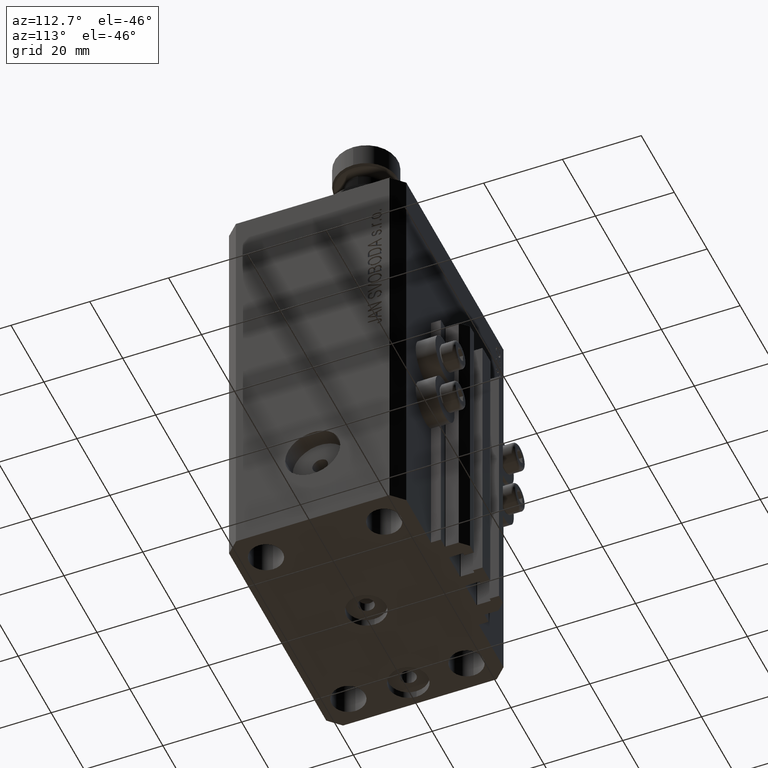
[diagram: clean part render]
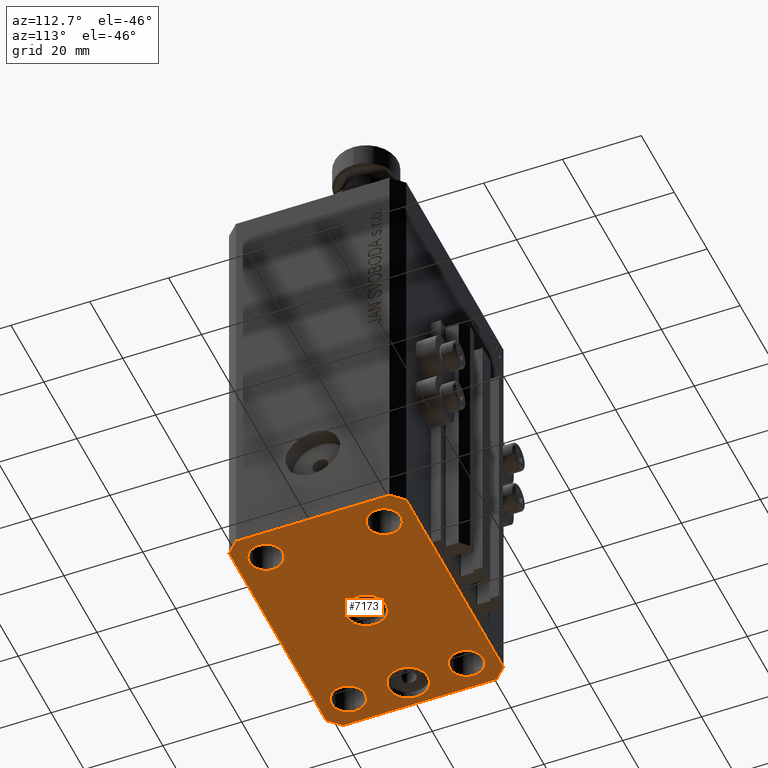
[diagram: same view with one face highlighted and labeled with its STEP entity id]
A machine part, auxiliary view. The second image highlights one B-rep face of the part: STEP entity #7173.
In plain terms, the highlighted planar face has unit normal (0, 0, 1).
Its self-contained STEP definition (entity closure, byte-faithful):
#162 = PLANE ( 'NONE',  #18892 ) ;
#320 = EDGE_CURVE ( 'NONE', #21083, #45650, #15331, .T. ) ;
#1200 = DIRECTION ( 'NONE',  ( -1.000000000000000000, 0.000000000000000000, 0.000000000000000000 ) ) ;
#1346 = EDGE_LOOP ( 'NONE', ( #43074, #43157 ) ) ;
#1465 = CARTESIAN_POINT ( 'NONE',  ( 24.99999999999999289, -15.00000000000000355, -107.0000000000000000 ) ) ;
#1500 = VERTEX_POINT ( 'NONE', #44455 ) ;
#1962 = CARTESIAN_POINT ( 'NONE',  ( 25.00000000000000000, 14.99999999999999289, -107.0000000000000000 ) ) ;
#2542 = AXIS2_PLACEMENT_3D ( 'NONE', #33009, #48120, #22137 ) ;
#2842 = EDGE_CURVE ( 'NONE', #11910, #28957, #15974, .T. ) ;
#3411 = CARTESIAN_POINT ( 'NONE',  ( 29.49999999999650413, -22.49999999999949196, -107.0000000000000000 ) ) ;
#3674 = CARTESIAN_POINT ( 'NONE',  ( 0.000000000000000000, 0.000000000000000000, -107.0000000000000000 ) ) ;
#4301 = EDGE_CURVE ( 'NONE', #31189, #7144, #40583, .T. ) ;
#4832 = CIRCLE ( 'NONE', #32517, 4.249999999957291053 ) ;
#5015 = CARTESIAN_POINT ( 'NONE',  ( 5.000000000000000000, 6.123233995736765296E-16, -107.0000000000000000 ) ) ;
#5166 = DIRECTION ( 'NONE',  ( -0.7071067811865474617, -0.7071067811865474617, 0.000000000000000000 ) ) ;
#5409 = EDGE_CURVE ( 'NONE', #1500, #27540, #19591, .T. ) ;
#5481 = ORIENTED_EDGE ( 'NONE', *, *, #9612, .F. ) ;
#5855 = CARTESIAN_POINT ( 'NONE',  ( -20.74999999997862687, 14.99999999999999645, -107.0000000000000000 ) ) ;
#5991 = CARTESIAN_POINT ( 'NONE',  ( -29.25000000002137668, 14.99999999999999645, -107.0000000000000000 ) ) ;
#6307 = ORIENTED_EDGE ( 'NONE', *, *, #45948, .F. ) ;
#6433 = ORIENTED_EDGE ( 'NONE', *, *, #47009, .F. ) ;
#6674 = DIRECTION ( 'NONE',  ( 1.000000000000000000, 1.176083712526788232E-16, 0.000000000000000000 ) ) ;
#6721 = VERTEX_POINT ( 'NONE', #5015 ) ;
#6753 = CARTESIAN_POINT ( 'NONE',  ( -29.25000000004036593, -15.00000000000000355, -107.0000000000000000 ) ) ;
#6828 = DIRECTION ( 'NONE',  ( -0.000000000000000000, -0.000000000000000000, -1.000000000000000000 ) ) ;
#6909 = CARTESIAN_POINT ( 'NONE',  ( -20.50000000000333955, 6.123233995732674066E-16, -107.0000000000000000 ) ) ;
#7144 = VERTEX_POINT ( 'NONE', #25437 ) ;
#7173 = ADVANCED_FACE ( 'NONE', ( #43504, #24694, #39797, #11792, #30130, #30602, #11314 ), #162, .F. ) ;
#7482 = EDGE_LOOP ( 'NONE', ( #13614, #5481 ) ) ;
#8049 = VERTEX_POINT ( 'NONE', #32181 ) ;
#8528 = DIRECTION ( 'NONE',  ( -1.000000000000000000, -3.528251137580330676E-16, 0.000000000000000000 ) ) ;
#8534 = ORIENTED_EDGE ( 'NONE', *, *, #8632, .F. ) ;
#8630 = LINE ( 'NONE', #45293, #27695 ) ;
#8632 = EDGE_CURVE ( 'NONE', #46364, #43980, #16106, .T. ) ;
#8850 = ORIENTED_EDGE ( 'NONE', *, *, #43205, .F. ) ;
#9038 = EDGE_LOOP ( 'NONE', ( #23579, #8850 ) ) ;
#9245 = ORIENTED_EDGE ( 'NONE', *, *, #5409, .F. ) ;
#9612 = EDGE_CURVE ( 'NONE', #45650, #21083, #33038, .T. ) ;
#10239 = CARTESIAN_POINT ( 'NONE',  ( -32.49999999999650413, 19.49999999999949907, -107.0000000000000000 ) ) ;
#11289 = VERTEX_POINT ( 'NONE', #6753 ) ;
#11314 = FACE_OUTER_BOUND ( 'NONE', #35881, .T. ) ;
#11787 = AXIS2_PLACEMENT_3D ( 'NONE', #13205, #16930, #46622 ) ;
#11792 = FACE_BOUND ( 'NONE', #36654, .T. ) ;
#11910 = VERTEX_POINT ( 'NONE', #13023 ) ;
#12353 = CARTESIAN_POINT ( 'NONE',  ( 0.000000000000000000, 0.000000000000000000, -107.0000000000000000 ) ) ;
#12611 = CARTESIAN_POINT ( 'NONE',  ( -29.49999999999650413, 22.49999999999949907, -107.0000000000000000 ) ) ;
#12871 = DIRECTION ( 'NONE',  ( 1.334402673828349134E-14, 1.000000000000000000, 0.000000000000000000 ) ) ;
#13023 = CARTESIAN_POINT ( 'NONE',  ( 29.49999999999707967, 22.49999999999952038, -107.0000000000000000 ) ) ;
#13205 = CARTESIAN_POINT ( 'NONE',  ( -24.99999999999999289, -15.00000000000000355, -107.0000000000000000 ) ) ;
#13571 = CIRCLE ( 'NONE', #47556, 4.249999999976314058 ) ;
#13614 = ORIENTED_EDGE ( 'NONE', *, *, #320, .F. ) ;
#14162 = CIRCLE ( 'NONE', #11787, 4.250000000040370374 ) ;
#14507 = VERTEX_POINT ( 'NONE', #47680 ) ;
#14509 = CARTESIAN_POINT ( 'NONE',  ( -24.99999999999999289, -15.00000000000000355, -107.0000000000000000 ) ) ;
#15081 = DIRECTION ( 'NONE',  ( -1.000000000000000000, 0.000000000000000000, 0.000000000000000000 ) ) ;
#15331 = CIRCLE ( 'NONE', #20869, 4.250000000021375790 ) ;
#15361 = DIRECTION ( 'NONE',  ( 0.7071067811865474617, -0.7071067811865474617, 0.000000000000000000 ) ) ;
#15974 = LINE ( 'NONE', #42438, #32146 ) ;
#16004 = AXIS2_PLACEMENT_3D ( 'NONE', #3674, #18795, #15081 ) ;
#16106 = LINE ( 'NONE', #43057, #16433 ) ;
#16152 = CARTESIAN_POINT ( 'NONE',  ( -5.000000000000000000, 0.000000000000000000, -107.0000000000000000 ) ) ;
#16433 = VECTOR ( 'NONE', #12871, 1000.000000000000000 ) ;
#16441 = EDGE_CURVE ( 'NONE', #28957, #36497, #46512, .T. ) ;
#16829 = EDGE_CURVE ( 'NONE', #20410, #32549, #39727, .T. ) ;
#16930 = DIRECTION ( 'NONE',  ( -0.000000000000000000, -0.000000000000000000, -1.000000000000000000 ) ) ;
#17586 = VECTOR ( 'NONE', #5166, 1000.000000000000114 ) ;
#17598 = LINE ( 'NONE', #36639, #21348 ) ;
#18035 = AXIS2_PLACEMENT_3D ( 'NONE', #1465, #43056, #42565 ) ;
#18165 = CIRCLE ( 'NONE', #45818, 4.999999999996659561 ) ;
#18773 = DIRECTION ( 'NONE',  ( 0.7071067811865483499, 0.7071067811865466846, 0.000000000000000000 ) ) ;
#18795 = DIRECTION ( 'NONE',  ( 0.000000000000000000, 0.000000000000000000, -1.000000000000000000 ) ) ;
#18892 = AXIS2_PLACEMENT_3D ( 'NONE', #33829, #19004, #37557 ) ;
#19004 = DIRECTION ( 'NONE',  ( 0.000000000000000000, 0.000000000000000000, 1.000000000000000000 ) ) ;
#19591 = CIRCLE ( 'NONE', #18035, 4.249999999976314058 ) ;
#19841 = DIRECTION ( 'NONE',  ( 0.000000000000000000, -1.000000000000000000, 0.000000000000000000 ) ) ;
#20410 = VERTEX_POINT ( 'NONE', #23814 ) ;
#20519 = CARTESIAN_POINT ( 'NONE',  ( -25.00000000000000000, 14.99999999999999645, -107.0000000000000000 ) ) ;
#20735 = CARTESIAN_POINT ( 'NONE',  ( 25.00000000000000000, 14.99999999999999289, -107.0000000000000000 ) ) ;
#20869 = AXIS2_PLACEMENT_3D ( 'NONE', #20519, #32635, #21008 ) ;
#21008 = DIRECTION ( 'NONE',  ( 1.000000000000000000, 0.000000000000000000, 0.000000000000000000 ) ) ;
#21077 = CARTESIAN_POINT ( 'NONE',  ( -25.50000000000000000, 0.000000000000000000, -107.0000000000000000 ) ) ;
#21083 = VERTEX_POINT ( 'NONE', #5855 ) ;
#21348 = VECTOR ( 'NONE', #44558, 1000.000000000000000 ) ;
#21559 = CIRCLE ( 'NONE', #16004, 5.000000000000000000 ) ;
#21914 = DIRECTION ( 'NONE',  ( -0.000000000000000000, -0.000000000000000000, -1.000000000000000000 ) ) ;
#22137 = DIRECTION ( 'NONE',  ( -1.000000000000000000, 0.000000000000000000, 0.000000000000000000 ) ) ;
#22683 = ORIENTED_EDGE ( 'NONE', *, *, #4301, .F. ) ;
#23309 = ORIENTED_EDGE ( 'NONE', *, *, #29135, .F. ) ;
#23579 = ORIENTED_EDGE ( 'NONE', *, *, #34907, .F. ) ;
#23685 = EDGE_CURVE ( 'NONE', #43980, #11910, #17598, .T. ) ;
#23751 = VECTOR ( 'NONE', #18773, 1000.000000000000000 ) ;
#23800 = EDGE_CURVE ( 'NONE', #41228, #31189, #8630, .T. ) ;
#23814 = CARTESIAN_POINT ( 'NONE',  ( -30.49999999999665690, 0.000000000000000000, -107.0000000000000000 ) ) ;
#24694 = FACE_BOUND ( 'NONE', #1346, .T. ) ;
#24886 = DIRECTION ( 'NONE',  ( 1.000000000000000000, 0.000000000000000000, 0.000000000000000000 ) ) ;
#24933 = DIRECTION ( 'NONE',  ( -0.000000000000000000, -0.000000000000000000, -1.000000000000000000 ) ) ;
#25058 = ORIENTED_EDGE ( 'NONE', *, *, #42953, .F. ) ;
#25135 = CARTESIAN_POINT ( 'NONE',  ( -20.74999999995962341, -15.00000000000000355, -107.0000000000000000 ) ) ;
#25437 = CARTESIAN_POINT ( 'NONE',  ( 29.49999999999650413, -22.49999999999949196, -107.0000000000000000 ) ) ;
#25492 = VECTOR ( 'NONE', #19841, 1000.000000000000000 ) ;
#25499 = ORIENTED_EDGE ( 'NONE', *, *, #16441, .F. ) ;
#26296 = AXIS2_PLACEMENT_3D ( 'NONE', #20735, #24933, #32606 ) ;
#26482 = CARTESIAN_POINT ( 'NONE',  ( -25.00000000000000000, 14.99999999999999645, -107.0000000000000000 ) ) ;
#26713 = DIRECTION ( 'NONE',  ( 1.000000000000000000, 0.000000000000000000, 0.000000000000000000 ) ) ;
#26849 = EDGE_CURVE ( 'NONE', #27540, #1500, #13571, .T. ) ;
#26941 = AXIS2_PLACEMENT_3D ( 'NONE', #14509, #6828, #36776 ) ;
#27451 = DIRECTION ( 'NONE',  ( 0.000000000000000000, 0.000000000000000000, -1.000000000000000000 ) ) ;
#27491 = CARTESIAN_POINT ( 'NONE',  ( -32.49999999999650413, 19.49999999999949907, -107.0000000000000000 ) ) ;
#27540 = VERTEX_POINT ( 'NONE', #35582 ) ;
#27695 = VECTOR ( 'NONE', #15361, 1000.000000000000114 ) ;
#28233 = VECTOR ( 'NONE', #6674, 1000.000000000000000 ) ;
#28957 = VERTEX_POINT ( 'NONE', #30422 ) ;
#28967 = EDGE_CURVE ( 'NONE', #6721, #36572, #21559, .T. ) ;
#29135 = EDGE_CURVE ( 'NONE', #14507, #8049, #31790, .T. ) ;
#29903 = LINE ( 'NONE', #3411, #23751 ) ;
#30130 = FACE_BOUND ( 'NONE', #35914, .T. ) ;
#30422 = CARTESIAN_POINT ( 'NONE',  ( -29.49999999999650413, 22.49999999999949907, -107.0000000000000000 ) ) ;
#30602 = FACE_BOUND ( 'NONE', #7482, .T. ) ;
#31127 = CARTESIAN_POINT ( 'NONE',  ( -32.49999999999650413, -19.49999999999949907, -107.0000000000000000 ) ) ;
#31189 = VERTEX_POINT ( 'NONE', #43847 ) ;
#31790 = CIRCLE ( 'NONE', #26296, 4.249999999957291053 ) ;
#32118 = CARTESIAN_POINT ( 'NONE',  ( 32.49999999999651124, -19.49999999999949196, -107.0000000000000000 ) ) ;
#32146 = VECTOR ( 'NONE', #8528, 1000.000000000000000 ) ;
#32181 = CARTESIAN_POINT ( 'NONE',  ( 20.75000000004271072, 14.99999999999999289, -107.0000000000000000 ) ) ;
#32418 = DIRECTION ( 'NONE',  ( -0.000000000000000000, -0.000000000000000000, -1.000000000000000000 ) ) ;
#32517 = AXIS2_PLACEMENT_3D ( 'NONE', #1962, #32418, #42819 ) ;
#32549 = VERTEX_POINT ( 'NONE', #6909 ) ;
#32560 = ORIENTED_EDGE ( 'NONE', *, *, #48955, .F. ) ;
#32606 = DIRECTION ( 'NONE',  ( 1.000000000000000000, 0.000000000000000000, 0.000000000000000000 ) ) ;
#32635 = DIRECTION ( 'NONE',  ( -0.000000000000000000, -0.000000000000000000, -1.000000000000000000 ) ) ;
#33009 = CARTESIAN_POINT ( 'NONE',  ( -25.50000000000000000, 0.000000000000000000, -107.0000000000000000 ) ) ;
#33038 = CIRCLE ( 'NONE', #48880, 4.250000000021375790 ) ;
#33441 = CARTESIAN_POINT ( 'NONE',  ( 32.49999999999702993, 19.49999999999945999, -107.0000000000000000 ) ) ;
#33829 = CARTESIAN_POINT ( 'NONE',  ( 0.000000000000000000, 0.000000000000000000, -107.0000000000000000 ) ) ;
#34595 = ORIENTED_EDGE ( 'NONE', *, *, #23685, .F. ) ;
#34613 = VERTEX_POINT ( 'NONE', #25135 ) ;
#34728 = ORIENTED_EDGE ( 'NONE', *, *, #2842, .F. ) ;
#34907 = EDGE_CURVE ( 'NONE', #34613, #11289, #14162, .T. ) ;
#34912 = ORIENTED_EDGE ( 'NONE', *, *, #26849, .F. ) ;
#35582 = CARTESIAN_POINT ( 'NONE',  ( 29.24999999997631051, -15.00000000000000355, -107.0000000000000000 ) ) ;
#35605 = CIRCLE ( 'NONE', #26941, 4.250000000040370374 ) ;
#35881 = EDGE_LOOP ( 'NONE', ( #34728, #34595, #8534, #25058, #22683, #38562, #6433, #25499 ) ) ;
#35914 = EDGE_LOOP ( 'NONE', ( #23309, #6307 ) ) ;
#36154 = DIRECTION ( 'NONE',  ( 0.000000000000000000, 0.000000000000000000, -1.000000000000000000 ) ) ;
#36497 = VERTEX_POINT ( 'NONE', #10239 ) ;
#36502 = CARTESIAN_POINT ( 'NONE',  ( 24.99999999999999289, -15.00000000000000355, -107.0000000000000000 ) ) ;
#36572 = VERTEX_POINT ( 'NONE', #16152 ) ;
#36639 = CARTESIAN_POINT ( 'NONE',  ( 32.49999999999702993, 19.49999999999945999, -107.0000000000000000 ) ) ;
#36654 = EDGE_LOOP ( 'NONE', ( #34912, #9245 ) ) ;
#36660 = EDGE_CURVE ( 'NONE', #32549, #20410, #18165, .T. ) ;
#36776 = DIRECTION ( 'NONE',  ( 1.000000000000000000, 0.000000000000000000, 0.000000000000000000 ) ) ;
#37396 = CIRCLE ( 'NONE', #38178, 5.000000000000000000 ) ;
#37557 = DIRECTION ( 'NONE',  ( 1.000000000000000000, 0.000000000000000000, -0.000000000000000000 ) ) ;
#37606 = CARTESIAN_POINT ( 'NONE',  ( -29.49999999999650413, -22.49999999999949907, -107.0000000000000000 ) ) ;
#38105 = DIRECTION ( 'NONE',  ( -0.000000000000000000, -0.000000000000000000, -1.000000000000000000 ) ) ;
#38178 = AXIS2_PLACEMENT_3D ( 'NONE', #12353, #27451, #1200 ) ;
#38412 = EDGE_LOOP ( 'NONE', ( #32560, #41008 ) ) ;
#38562 = ORIENTED_EDGE ( 'NONE', *, *, #23800, .F. ) ;
#39727 = CIRCLE ( 'NONE', #2542, 4.999999999996659561 ) ;
#39797 = FACE_BOUND ( 'NONE', #9038, .T. ) ;
#40583 = LINE ( 'NONE', #37606, #28233 ) ;
#41008 = ORIENTED_EDGE ( 'NONE', *, *, #28967, .F. ) ;
#41228 = VERTEX_POINT ( 'NONE', #31127 ) ;
#42438 = CARTESIAN_POINT ( 'NONE',  ( 29.49999999999707967, 22.49999999999952038, -107.0000000000000000 ) ) ;
#42565 = DIRECTION ( 'NONE',  ( 1.000000000000000000, 0.000000000000000000, 0.000000000000000000 ) ) ;
#42819 = DIRECTION ( 'NONE',  ( 1.000000000000000000, 0.000000000000000000, 0.000000000000000000 ) ) ;
#42953 = EDGE_CURVE ( 'NONE', #7144, #46364, #29903, .T. ) ;
#43056 = DIRECTION ( 'NONE',  ( -0.000000000000000000, -0.000000000000000000, -1.000000000000000000 ) ) ;
#43057 = CARTESIAN_POINT ( 'NONE',  ( 32.49999999999651124, -19.49999999999949196, -107.0000000000000000 ) ) ;
#43074 = ORIENTED_EDGE ( 'NONE', *, *, #16829, .F. ) ;
#43157 = ORIENTED_EDGE ( 'NONE', *, *, #36660, .F. ) ;
#43205 = EDGE_CURVE ( 'NONE', #11289, #34613, #35605, .T. ) ;
#43504 = FACE_BOUND ( 'NONE', #38412, .T. ) ;
#43843 = DIRECTION ( 'NONE',  ( -1.000000000000000000, 0.000000000000000000, 0.000000000000000000 ) ) ;
#43847 = CARTESIAN_POINT ( 'NONE',  ( -29.49999999999650413, -22.49999999999949907, -107.0000000000000000 ) ) ;
#43980 = VERTEX_POINT ( 'NONE', #33441 ) ;
#44455 = CARTESIAN_POINT ( 'NONE',  ( 20.75000000002367884, -15.00000000000000355, -107.0000000000000000 ) ) ;
#44558 = DIRECTION ( 'NONE',  ( -0.7071067811865344721, 0.7071067811865606734, 0.000000000000000000 ) ) ;
#45293 = CARTESIAN_POINT ( 'NONE',  ( -32.49999999999650413, -19.49999999999949907, -107.0000000000000000 ) ) ;
#45650 = VERTEX_POINT ( 'NONE', #5991 ) ;
#45818 = AXIS2_PLACEMENT_3D ( 'NONE', #21077, #36154, #43843 ) ;
#45948 = EDGE_CURVE ( 'NONE', #8049, #14507, #4832, .T. ) ;
#46364 = VERTEX_POINT ( 'NONE', #32118 ) ;
#46512 = LINE ( 'NONE', #12611, #17586 ) ;
#46622 = DIRECTION ( 'NONE',  ( 1.000000000000000000, 0.000000000000000000, 0.000000000000000000 ) ) ;
#47009 = EDGE_CURVE ( 'NONE', #36497, #41228, #47041, .T. ) ;
#47041 = LINE ( 'NONE', #27491, #25492 ) ;
#47556 = AXIS2_PLACEMENT_3D ( 'NONE', #36502, #21914, #24886 ) ;
#47680 = CARTESIAN_POINT ( 'NONE',  ( 29.24999999995729283, 14.99999999999999289, -107.0000000000000000 ) ) ;
#48120 = DIRECTION ( 'NONE',  ( 0.000000000000000000, 0.000000000000000000, -1.000000000000000000 ) ) ;
#48880 = AXIS2_PLACEMENT_3D ( 'NONE', #26482, #38105, #26713 ) ;
#48955 = EDGE_CURVE ( 'NONE', #36572, #6721, #37396, .T. ) ;